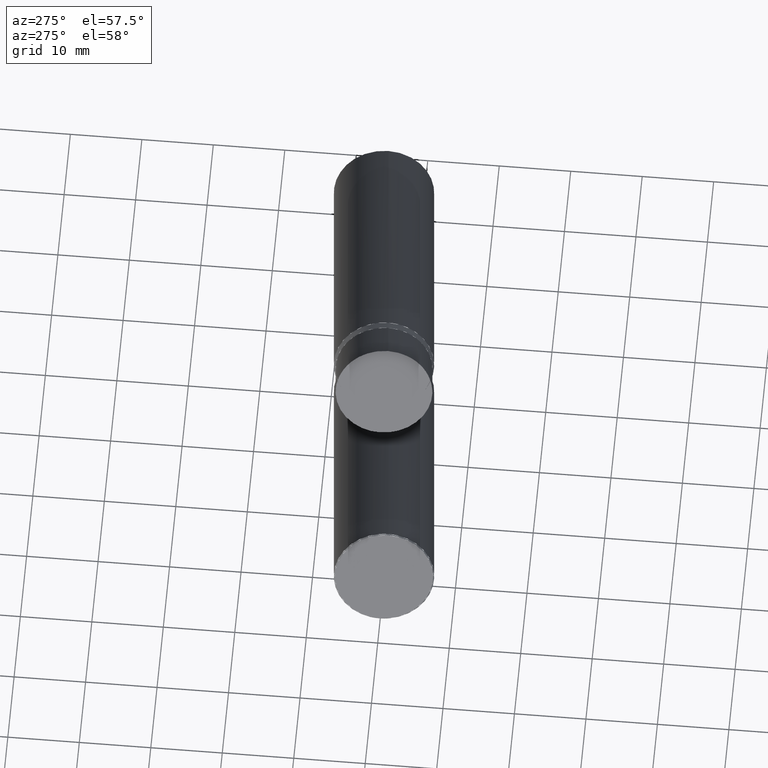
[diagram: clean part render]
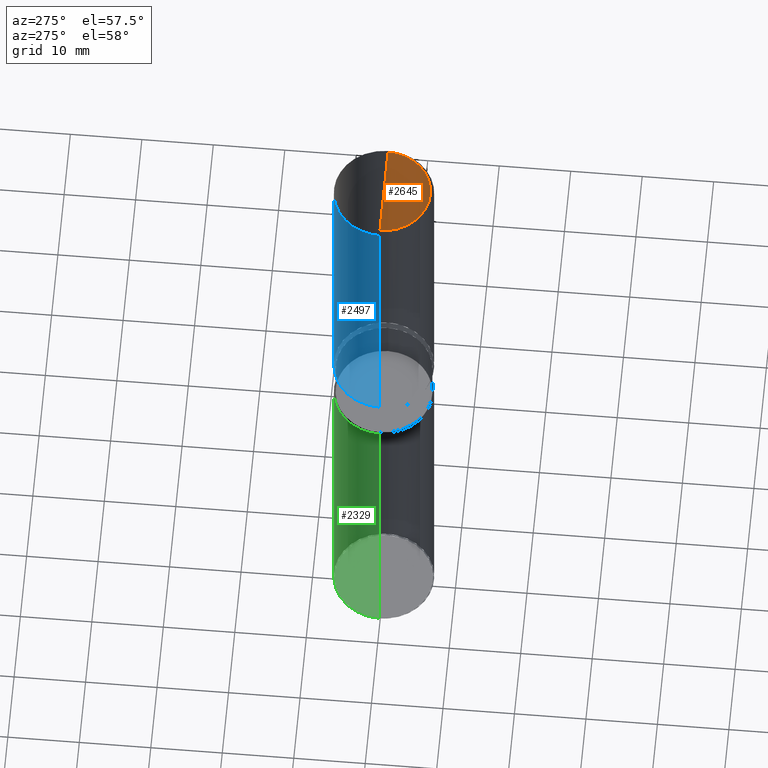
[diagram: same view with three faces highlighted in distinct colors, each labeled with its STEP entity id]
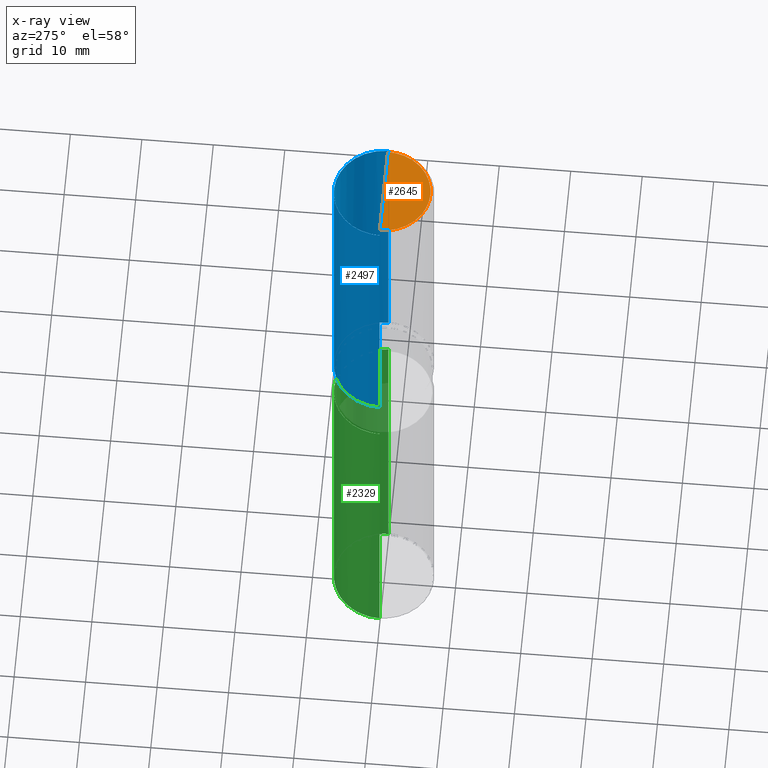
[diagram: x-ray of the same camera — body ghosted, the three highlighted faces saturated]
A machine part, auxiliary view with three faces highlighted in distinct colors.
The next image is the same camera in x-ray (body ghosted, the three faces saturated) — at least one of them is partly hidden behind the body in this view.
Their STEP definitions:

[orange] entity #2645 — the highlighted face is a freeform B-spline surface patch.
#2246=CARTESIAN_POINT('',(6.5,0.0,45.06699011));
#2250=CARTESIAN_POINT('',(-6.5,0.0,45.06699011));
#2251=CARTESIAN_POINT('',(0.0,0.0,45.06699011));
#2264=CARTESIAN_POINT('',(-6.5,-6.5,45.06699011));
#2265=CARTESIAN_POINT('',(0.0,-6.5,45.06699011));
#2266=CARTESIAN_POINT('',(6.5,-6.5,45.06699011));
#2630=(
BOUNDED_SURFACE()
B_SPLINE_SURFACE(1,2,(
(#2250,#2264,#2265,#2266,#2246),
(#2251,#2251,#2251,#2251,#2251)
), .UNSPECIFIED.,.F.,.F.,.F.)
B_SPLINE_SURFACE_WITH_KNOTS((2,2),(3,2,3),(
0.0,1.0),(
0.0,0.5,1.0), .UNSPECIFIED.)
GEOMETRIC_REPRESENTATION_ITEM()
RATIONAL_B_SPLINE_SURFACE(((1.0,0.707106781187,1.0,0.707106781187,1.0),
(1.0,0.707106781187,1.0,0.707106781187,1.0)
))
REPRESENTATION_ITEM('')
SURFACE()
);
#2631=(
BOUNDED_CURVE()
B_SPLINE_CURVE(1,(#2251,#2246),.UNSPECIFIED.,.F.,.F.)
B_SPLINE_CURVE_WITH_KNOTS((2,2),
(0.0,1.0),.UNSPECIFIED.)
CURVE()
GEOMETRIC_REPRESENTATION_ITEM()
RATIONAL_B_SPLINE_CURVE((1.0,1.0))
REPRESENTATION_ITEM('')
);
#2632=(
BOUNDED_CURVE()
B_SPLINE_CURVE(2,(#2246,#2266,#2265,#2264,#2250),.UNSPECIFIED.,.F.,.F.)
B_SPLINE_CURVE_WITH_KNOTS((3,2,3),
(0.0,0.5,1.0),.UNSPECIFIED.)
CURVE()
GEOMETRIC_REPRESENTATION_ITEM()
RATIONAL_B_SPLINE_CURVE((1.0,0.707106781187,1.0,0.707106781187,1.0))
REPRESENTATION_ITEM('')
);
#2633=(
BOUNDED_CURVE()
B_SPLINE_CURVE(1,(#2250,#2251),.UNSPECIFIED.,.F.,.F.)
B_SPLINE_CURVE_WITH_KNOTS((2,2),
(0.0,1.0),.UNSPECIFIED.)
CURVE()
GEOMETRIC_REPRESENTATION_ITEM()
RATIONAL_B_SPLINE_CURVE((1.0,1.0))
REPRESENTATION_ITEM('')
);
#2634=VERTEX_POINT('',#2246);
#2635=VERTEX_POINT('',#2250);
#2636=VERTEX_POINT('',#2251);
#2637=EDGE_CURVE('',#2636,#2634,#2631,.T.);
#2638=EDGE_CURVE('',#2634,#2635,#2632,.T.);
#2639=EDGE_CURVE('',#2635,#2636,#2633,.T.);
#2640=ORIENTED_EDGE('',*,*,#2637,.T.);
#2641=ORIENTED_EDGE('',*,*,#2638,.T.);
#2642=ORIENTED_EDGE('',*,*,#2639,.T.);
#2643=EDGE_LOOP('',(#2640,#2641,#2642));
#2644=FACE_OUTER_BOUND('',#2643,.T.);
#2645=ADVANCED_FACE('',(#2644),#2630,.T.);

[blue] entity #2497 — the highlighted face is a freeform B-spline surface patch.
#2236=CARTESIAN_POINT('',(7.0,0.0,0.0));
#2237=CARTESIAN_POINT('',(7.0,7.0,0.0));
#2238=CARTESIAN_POINT('',(0.0,7.0,0.0));
#2239=CARTESIAN_POINT('',(-7.0,7.0,0.0));
#2240=CARTESIAN_POINT('',(-7.0,0.0,0.0));
#2241=CARTESIAN_POINT('',(7.0,0.0,44.56699011));
#2242=CARTESIAN_POINT('',(7.0,7.0,44.56699011));
#2243=CARTESIAN_POINT('',(0.0,7.0,44.56699011));
#2244=CARTESIAN_POINT('',(-7.0,7.0,44.56699011));
#2245=CARTESIAN_POINT('',(-7.0,0.0,44.56699011));
#2478=(
BOUNDED_SURFACE()
B_SPLINE_SURFACE(1,2,(
(#2236,#2237,#2238,#2239,#2240),
(#2241,#2242,#2243,#2244,#2245)
), .UNSPECIFIED.,.F.,.F.,.F.)
B_SPLINE_SURFACE_WITH_KNOTS((2,2),(3,2,3),(
0.0,1.0),(
0.0,0.5,1.0), .UNSPECIFIED.)
GEOMETRIC_REPRESENTATION_ITEM()
RATIONAL_B_SPLINE_SURFACE(((1.0,0.707106781187,1.0,0.707106781187,1.0),
(1.0,0.707106781187,1.0,0.707106781187,1.0)
))
REPRESENTATION_ITEM('')
SURFACE()
);
#2479=(
BOUNDED_CURVE()
B_SPLINE_CURVE(2,(#2241,#2242,#2243,#2244,#2245),.UNSPECIFIED.,.F.,.F.)
B_SPLINE_CURVE_WITH_KNOTS((3,2,3),
(0.0,0.5,1.0),.UNSPECIFIED.)
CURVE()
GEOMETRIC_REPRESENTATION_ITEM()
RATIONAL_B_SPLINE_CURVE((1.0,0.707106781187,1.0,0.707106781187,1.0))
REPRESENTATION_ITEM('')
);
#2480=(
BOUNDED_CURVE()
B_SPLINE_CURVE(1,(#2245,#2240),.UNSPECIFIED.,.F.,.F.)
B_SPLINE_CURVE_WITH_KNOTS((2,2),
(0.0,1.0),.UNSPECIFIED.)
CURVE()
GEOMETRIC_REPRESENTATION_ITEM()
RATIONAL_B_SPLINE_CURVE((1.0,1.0))
REPRESENTATION_ITEM('')
);
#2481=(
BOUNDED_CURVE()
B_SPLINE_CURVE(2,(#2240,#2239,#2238,#2237,#2236),.UNSPECIFIED.,.F.,.F.)
B_SPLINE_CURVE_WITH_KNOTS((3,2,3),
(0.0,0.5,1.0),.UNSPECIFIED.)
CURVE()
GEOMETRIC_REPRESENTATION_ITEM()
RATIONAL_B_SPLINE_CURVE((1.0,0.707106781187,1.0,0.707106781187,1.0))
REPRESENTATION_ITEM('')
);
#2482=(
BOUNDED_CURVE()
B_SPLINE_CURVE(1,(#2236,#2241),.UNSPECIFIED.,.F.,.F.)
B_SPLINE_CURVE_WITH_KNOTS((2,2),
(0.0,1.0),.UNSPECIFIED.)
CURVE()
GEOMETRIC_REPRESENTATION_ITEM()
RATIONAL_B_SPLINE_CURVE((1.0,1.0))
REPRESENTATION_ITEM('')
);
#2483=VERTEX_POINT('',#2236);
#2484=VERTEX_POINT('',#2240);
#2485=VERTEX_POINT('',#2241);
#2486=VERTEX_POINT('',#2245);
#2487=EDGE_CURVE('',#2485,#2486,#2479,.T.);
#2488=EDGE_CURVE('',#2486,#2484,#2480,.T.);
#2489=EDGE_CURVE('',#2484,#2483,#2481,.T.);
#2490=EDGE_CURVE('',#2483,#2485,#2482,.T.);
#2491=ORIENTED_EDGE('',*,*,#2487,.T.);
#2492=ORIENTED_EDGE('',*,*,#2488,.T.);
#2493=ORIENTED_EDGE('',*,*,#2489,.T.);
#2494=ORIENTED_EDGE('',*,*,#2490,.T.);
#2495=EDGE_LOOP('',(#2491,#2492,#2493,#2494));
#2496=FACE_OUTER_BOUND('',#2495,.T.);
#2497=ADVANCED_FACE('',(#2496),#2478,.T.);

[green] entity #2329 — the highlighted face is a freeform B-spline surface patch.
#2206=CARTESIAN_POINT('',(7.0,0.0,-54.79300989));
#2207=CARTESIAN_POINT('',(7.0,7.0,-54.79300989));
#2208=CARTESIAN_POINT('',(0.0,7.0,-54.79300989));
#2209=CARTESIAN_POINT('',(-7.0,7.0,-54.79300989));
#2210=CARTESIAN_POINT('',(-7.0,0.0,-54.79300989));
#2211=CARTESIAN_POINT('',(7.0,0.0,-6.93300989));
#2212=CARTESIAN_POINT('',(7.0,7.0,-6.93300989));
#2213=CARTESIAN_POINT('',(0.0,7.0,-6.93300989));
#2214=CARTESIAN_POINT('',(-7.0,7.0,-6.93300989));
#2215=CARTESIAN_POINT('',(-7.0,0.0,-6.93300989));
#2310=(
BOUNDED_SURFACE()
B_SPLINE_SURFACE(1,2,(
(#2206,#2207,#2208,#2209,#2210),
(#2211,#2212,#2213,#2214,#2215)
), .UNSPECIFIED.,.F.,.F.,.F.)
B_SPLINE_SURFACE_WITH_KNOTS((2,2),(3,2,3),(
0.0,1.0),(
0.0,0.5,1.0), .UNSPECIFIED.)
GEOMETRIC_REPRESENTATION_ITEM()
RATIONAL_B_SPLINE_SURFACE(((1.0,0.707106781187,1.0,0.707106781187,1.0),
(1.0,0.707106781187,1.0,0.707106781187,1.0)
))
REPRESENTATION_ITEM('')
SURFACE()
);
#2311=(
BOUNDED_CURVE()
B_SPLINE_CURVE(2,(#2211,#2212,#2213,#2214,#2215),.UNSPECIFIED.,.F.,.F.)
B_SPLINE_CURVE_WITH_KNOTS((3,2,3),
(0.0,0.5,1.0),.UNSPECIFIED.)
CURVE()
GEOMETRIC_REPRESENTATION_ITEM()
RATIONAL_B_SPLINE_CURVE((1.0,0.707106781187,1.0,0.707106781187,1.0))
REPRESENTATION_ITEM('')
);
#2312=(
BOUNDED_CURVE()
B_SPLINE_CURVE(1,(#2215,#2210),.UNSPECIFIED.,.F.,.F.)
B_SPLINE_CURVE_WITH_KNOTS((2,2),
(0.0,1.0),.UNSPECIFIED.)
CURVE()
GEOMETRIC_REPRESENTATION_ITEM()
RATIONAL_B_SPLINE_CURVE((1.0,1.0))
REPRESENTATION_ITEM('')
);
#2313=(
BOUNDED_CURVE()
B_SPLINE_CURVE(2,(#2210,#2209,#2208,#2207,#2206),.UNSPECIFIED.,.F.,.F.)
B_SPLINE_CURVE_WITH_KNOTS((3,2,3),
(0.0,0.5,1.0),.UNSPECIFIED.)
CURVE()
GEOMETRIC_REPRESENTATION_ITEM()
RATIONAL_B_SPLINE_CURVE((1.0,0.707106781187,1.0,0.707106781187,1.0))
REPRESENTATION_ITEM('')
);
#2314=(
BOUNDED_CURVE()
B_SPLINE_CURVE(1,(#2206,#2211),.UNSPECIFIED.,.F.,.F.)
B_SPLINE_CURVE_WITH_KNOTS((2,2),
(0.0,1.0),.UNSPECIFIED.)
CURVE()
GEOMETRIC_REPRESENTATION_ITEM()
RATIONAL_B_SPLINE_CURVE((1.0,1.0))
REPRESENTATION_ITEM('')
);
#2315=VERTEX_POINT('',#2206);
#2316=VERTEX_POINT('',#2210);
#2317=VERTEX_POINT('',#2211);
#2318=VERTEX_POINT('',#2215);
#2319=EDGE_CURVE('',#2317,#2318,#2311,.T.);
#2320=EDGE_CURVE('',#2318,#2316,#2312,.T.);
#2321=EDGE_CURVE('',#2316,#2315,#2313,.T.);
#2322=EDGE_CURVE('',#2315,#2317,#2314,.T.);
#2323=ORIENTED_EDGE('',*,*,#2319,.T.);
#2324=ORIENTED_EDGE('',*,*,#2320,.T.);
#2325=ORIENTED_EDGE('',*,*,#2321,.T.);
#2326=ORIENTED_EDGE('',*,*,#2322,.T.);
#2327=EDGE_LOOP('',(#2323,#2324,#2325,#2326));
#2328=FACE_OUTER_BOUND('',#2327,.T.);
#2329=ADVANCED_FACE('',(#2328),#2310,.T.);